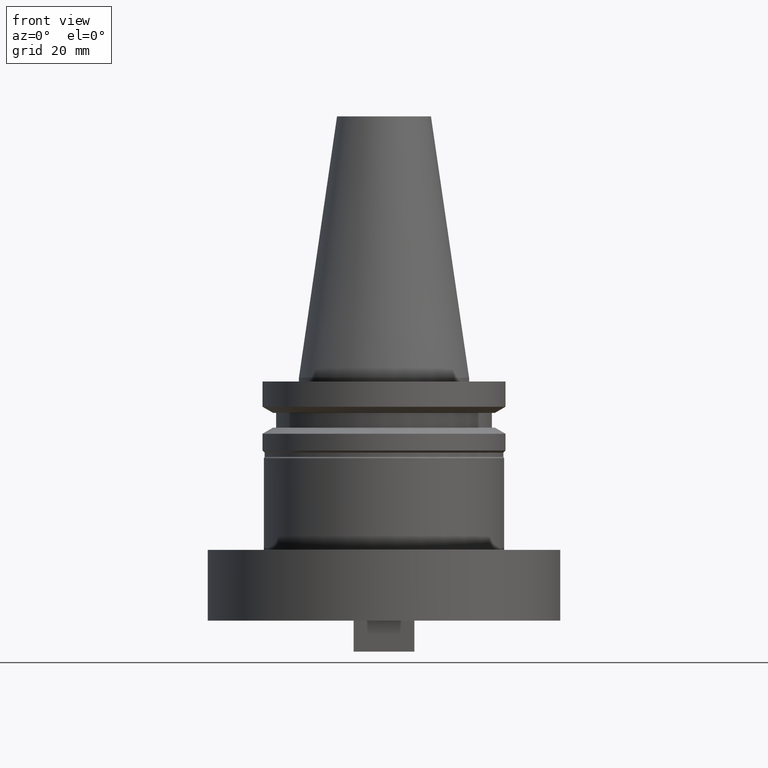
[diagram: clean part render]
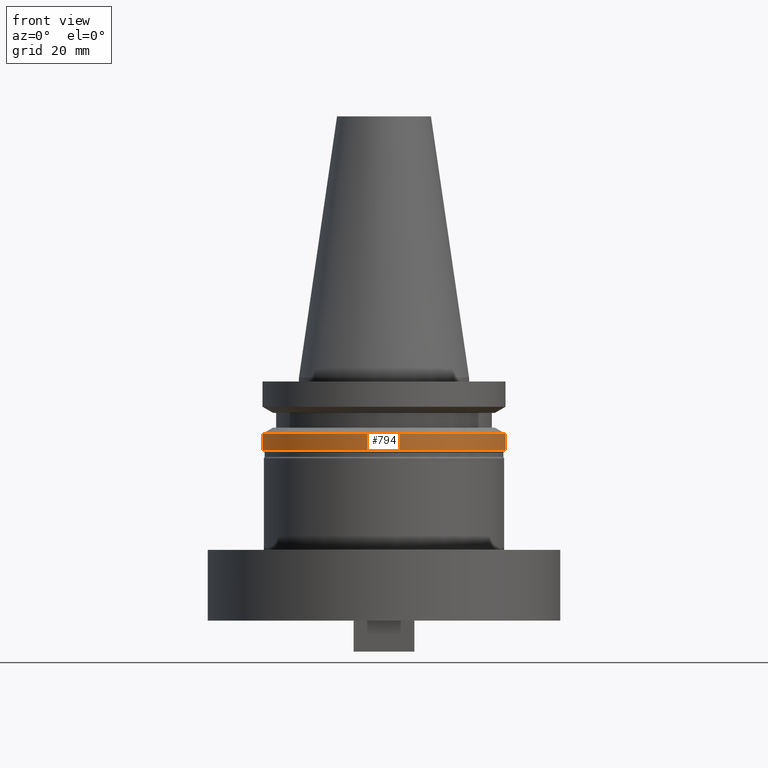
[diagram: same view with one face highlighted and labeled with its STEP entity id]
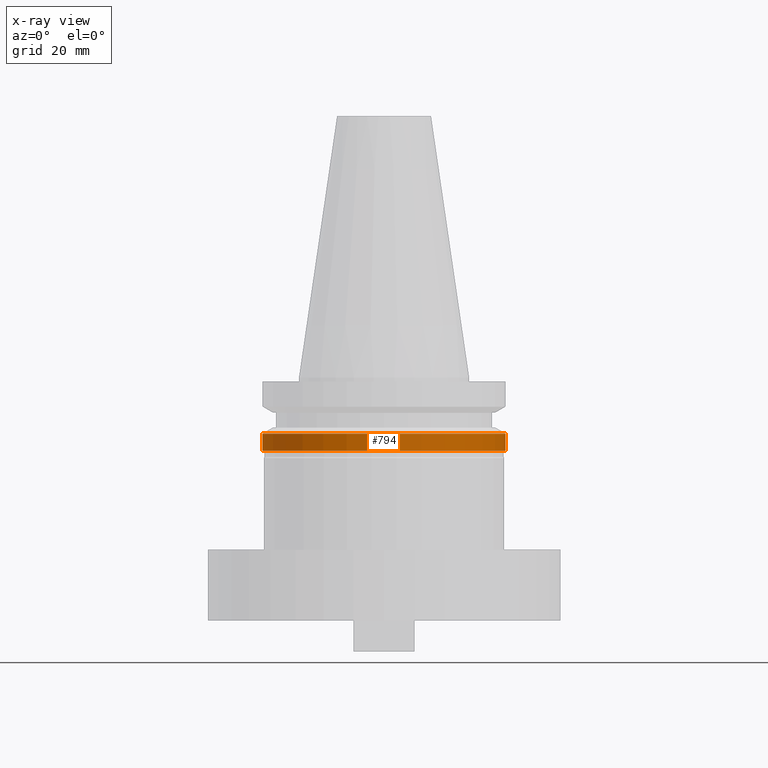
[diagram: x-ray of the same camera — body ghosted, the highlighted face saturated]
A machine part, front view. The second image highlights one B-rep face of the part: STEP entity #794.
The next image is the same camera in x-ray: the body ghosted, the highlighted face saturated — about 0% of this face is hidden behind the body in this view.
In plain terms, the highlighted cylindrical surface (partial cylindrical patch) has radius 31.75 mm, axis along (-0, -0, 1).
Its self-contained STEP definition (entity closure, byte-faithful):
#3 = DIRECTION ( 'NONE',  ( 1.000000000000000000, 0.000000000000000000, 0.000000000000000000 ) ) ;
#61 = EDGE_CURVE ( 'NONE', #1169, #677, #768, .T. ) ;
#64 = CYLINDRICAL_SURFACE ( 'NONE', #152, 31.75000000000000000 ) ;
#96 = DIRECTION ( 'NONE',  ( -0.000000000000000000, -0.000000000000000000, 1.000000000000000000 ) ) ;
#99 = VERTEX_POINT ( 'NONE', #751 ) ;
#108 = DIRECTION ( 'NONE',  ( 1.000000000000000000, 0.000000000000000000, 0.000000000000000000 ) ) ;
#137 = ORIENTED_EDGE ( 'NONE', *, *, #61, .T. ) ;
#152 = AXIS2_PLACEMENT_3D ( 'NONE', #811, #1200, #354 ) ;
#165 = DIRECTION ( 'NONE',  ( -0.000000000000000000, -0.000000000000000000, 1.000000000000000000 ) ) ;
#190 = VECTOR ( 'NONE', #96, 1000.000000000000000 ) ;
#205 = AXIS2_PLACEMENT_3D ( 'NONE', #728, #822, #3 ) ;
#255 = CARTESIAN_POINT ( 'NONE',  ( -31.75000000000000000, 3.888253587292846476E-15, 68.25000000000000000 ) ) ;
#276 = ORIENTED_EDGE ( 'NONE', *, *, #1002, .T. ) ;
#281 = DIRECTION ( 'NONE',  ( -0.000000000000000000, -0.000000000000000000, 1.000000000000000000 ) ) ;
#354 = DIRECTION ( 'NONE',  ( 1.000000000000000000, 0.000000000000000000, 0.000000000000000000 ) ) ;
#388 = EDGE_LOOP ( 'NONE', ( #753, #137, #276, #842 ) ) ;
#473 = CARTESIAN_POINT ( 'NONE',  ( 0.000000000000000000, 0.000000000000000000, -19.04999999999999716 ) ) ;
#548 = LINE ( 'NONE', #1113, #190 ) ;
#560 = CARTESIAN_POINT ( 'NONE',  ( 31.74999999999999289, 0.000000000000000000, -19.04999999999999716 ) ) ;
#677 = VERTEX_POINT ( 'NONE', #560 ) ;
#678 = CARTESIAN_POINT ( 'NONE',  ( -31.74999999999999289, 3.888253587292845687E-15, -19.04999999999999716 ) ) ;
#707 = LINE ( 'NONE', #255, #977 ) ;
#728 = CARTESIAN_POINT ( 'NONE',  ( 0.000000000000000000, 0.000000000000000000, -14.65472339340266572 ) ) ;
#751 = CARTESIAN_POINT ( 'NONE',  ( -31.75000000000000000, 3.888253587292846476E-15, -14.65472339340266572 ) ) ;
#753 = ORIENTED_EDGE ( 'NONE', *, *, #824, .F. ) ;
#768 = CIRCLE ( 'NONE', #851, 31.74999999999999289 ) ;
#794 = ADVANCED_FACE ( 'NONE', ( #1039 ), #64, .T. ) ;
#811 = CARTESIAN_POINT ( 'NONE',  ( 0.000000000000000000, 0.000000000000000000, 68.25000000000000000 ) ) ;
#822 = DIRECTION ( 'NONE',  ( -0.000000000000000000, -0.000000000000000000, 1.000000000000000000 ) ) ;
#824 = EDGE_CURVE ( 'NONE', #1169, #99, #707, .T. ) ;
#827 = CIRCLE ( 'NONE', #205, 31.75000000000000000 ) ;
#842 = ORIENTED_EDGE ( 'NONE', *, *, #959, .F. ) ;
#851 = AXIS2_PLACEMENT_3D ( 'NONE', #473, #281, #108 ) ;
#959 = EDGE_CURVE ( 'NONE', #99, #986, #827, .T. ) ;
#977 = VECTOR ( 'NONE', #165, 1000.000000000000000 ) ;
#986 = VERTEX_POINT ( 'NONE', #1191 ) ;
#1002 = EDGE_CURVE ( 'NONE', #677, #986, #548, .T. ) ;
#1039 = FACE_OUTER_BOUND ( 'NONE', #388, .T. ) ;
#1113 = CARTESIAN_POINT ( 'NONE',  ( 31.75000000000000000, 0.000000000000000000, 68.25000000000000000 ) ) ;
#1169 = VERTEX_POINT ( 'NONE', #678 ) ;
#1191 = CARTESIAN_POINT ( 'NONE',  ( 31.75000000000000000, 0.000000000000000000, -14.65472339340266572 ) ) ;
#1200 = DIRECTION ( 'NONE',  ( -0.000000000000000000, -0.000000000000000000, 1.000000000000000000 ) ) ;